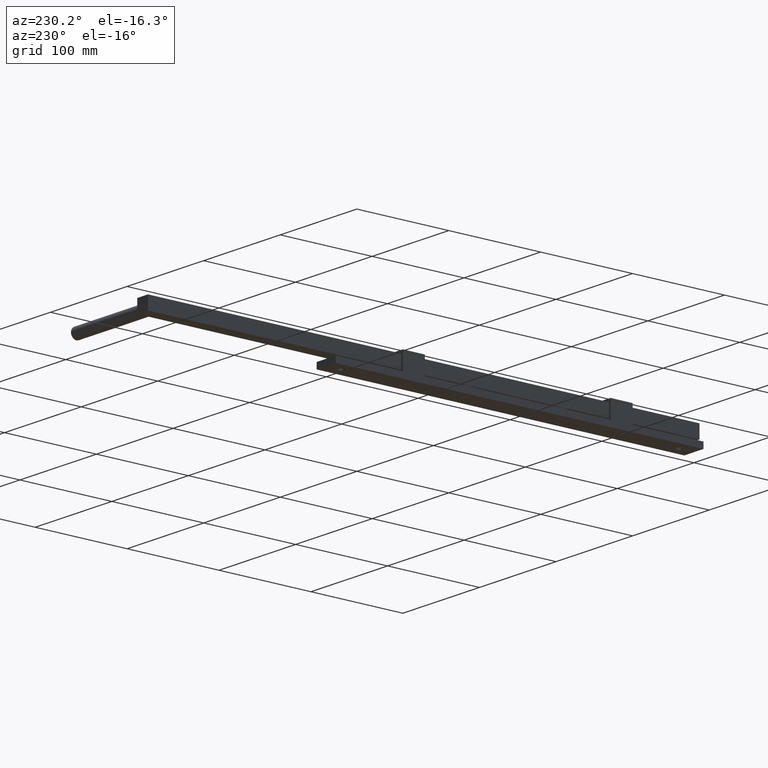
[diagram: clean part render]
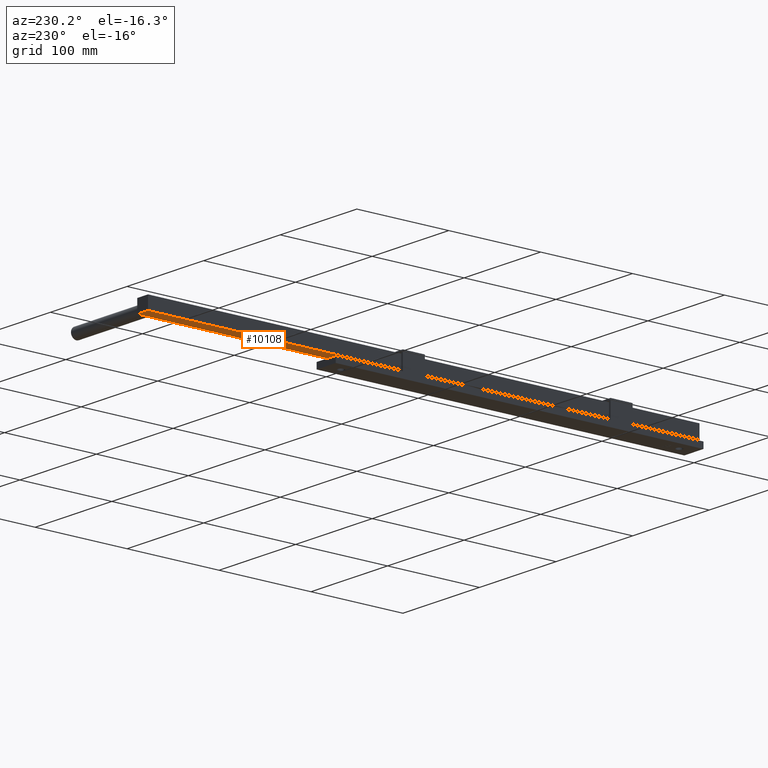
[diagram: same view with one face highlighted and labeled with its STEP entity id]
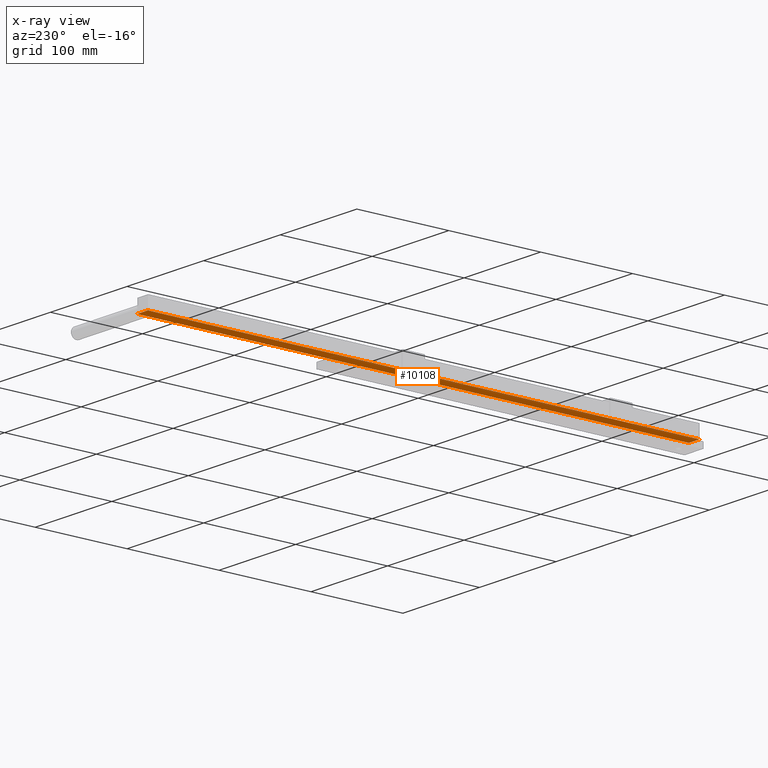
[diagram: x-ray of the same camera — body ghosted, the highlighted face saturated]
A machine part, auxiliary view. The second image highlights one B-rep face of the part: STEP entity #10108.
The next image is the same camera in x-ray: the body ghosted, the highlighted face saturated — about 0% of this face is hidden behind the body in this view.
In plain terms, the highlighted planar face has unit normal (0, 0, -1).
Its self-contained STEP definition (entity closure, byte-faithful):
#182 = VERTEX_POINT ( 'NONE', #7424 ) ;
#313 = VECTOR ( 'NONE', #2799, 1000.000000000000000 ) ;
#1267 = CARTESIAN_POINT ( 'NONE',  ( 6.672417362045123923, 400.0000000000000000, 9.496747849661481666 ) ) ;
#1567 = ORIENTED_EDGE ( 'NONE', *, *, #7348, .T. ) ;
#1641 = DIRECTION ( 'NONE',  ( 1.000000000000000000, 0.000000000000000000, 2.478176394252582127E-16 ) ) ;
#1702 = DIRECTION ( 'NONE',  ( 2.478176394252582127E-16, 0.000000000000000000, -1.000000000000000000 ) ) ;
#1822 = CARTESIAN_POINT ( 'NONE',  ( -7.327582637954873412, 400.0000000000000000, 9.496747849661478114 ) ) ;
#2551 = ORIENTED_EDGE ( 'NONE', *, *, #10655, .F. ) ;
#2765 = CARTESIAN_POINT ( 'NONE',  ( -7.327582637954873412, -199.9999999999999716, 9.496747849661478114 ) ) ;
#2799 = DIRECTION ( 'NONE',  ( 1.000000000000000000, 0.000000000000000000, 2.478176394252582127E-16 ) ) ;
#3023 = ORIENTED_EDGE ( 'NONE', *, *, #3653, .F. ) ;
#3429 = CARTESIAN_POINT ( 'NONE',  ( -7.327582637954873412, 400.0000000000000000, 9.496747849661478114 ) ) ;
#3653 = EDGE_CURVE ( 'NONE', #9832, #182, #8071, .T. ) ;
#4180 = DIRECTION ( 'NONE',  ( -0.000000000000000000, -1.000000000000000000, -0.000000000000000000 ) ) ;
#4221 = FACE_OUTER_BOUND ( 'NONE', #6144, .T. ) ;
#5684 = VECTOR ( 'NONE', #1641, 1000.000000000000000 ) ;
#6002 = VERTEX_POINT ( 'NONE', #8250 ) ;
#6144 = EDGE_LOOP ( 'NONE', ( #2551, #3023, #11713, #1567 ) ) ;
#6177 = LINE ( 'NONE', #1267, #9474 ) ;
#7348 = EDGE_CURVE ( 'NONE', #7885, #6002, #6177, .T. ) ;
#7424 = CARTESIAN_POINT ( 'NONE',  ( -7.327582637954873412, -199.9999999999999716, 9.496747849661478114 ) ) ;
#7485 = LINE ( 'NONE', #2765, #313 ) ;
#7775 = VECTOR ( 'NONE', #9017, 1000.000000000000000 ) ;
#7885 = VERTEX_POINT ( 'NONE', #9210 ) ;
#8071 = LINE ( 'NONE', #8905, #7775 ) ;
#8250 = CARTESIAN_POINT ( 'NONE',  ( 6.672417362045123923, -199.9999999999999716, 9.496747849661481666 ) ) ;
#8492 = PLANE ( 'NONE',  #10494 ) ;
#8532 = DIRECTION ( 'NONE',  ( -1.000000000000000000, 0.000000000000000000, -2.478176394252582127E-16 ) ) ;
#8905 = CARTESIAN_POINT ( 'NONE',  ( -7.327582637954873412, 400.0000000000000000, 9.496747849661478114 ) ) ;
#9017 = DIRECTION ( 'NONE',  ( -0.000000000000000000, -1.000000000000000000, -0.000000000000000000 ) ) ;
#9210 = CARTESIAN_POINT ( 'NONE',  ( 6.672417362045123923, 400.0000000000000000, 9.496747849661481666 ) ) ;
#9474 = VECTOR ( 'NONE', #4180, 1000.000000000000000 ) ;
#9832 = VERTEX_POINT ( 'NONE', #11617 ) ;
#10108 = ADVANCED_FACE ( 'NONE', ( #4221 ), #8492, .T. ) ;
#10494 = AXIS2_PLACEMENT_3D ( 'NONE', #1822, #1702, #8532 ) ;
#10607 = LINE ( 'NONE', #3429, #5684 ) ;
#10655 = EDGE_CURVE ( 'NONE', #182, #6002, #7485, .T. ) ;
#11617 = CARTESIAN_POINT ( 'NONE',  ( -7.327582637954873412, 400.0000000000000000, 9.496747849661478114 ) ) ;
#11713 = ORIENTED_EDGE ( 'NONE', *, *, #11866, .T. ) ;
#11866 = EDGE_CURVE ( 'NONE', #9832, #7885, #10607, .T. ) ;